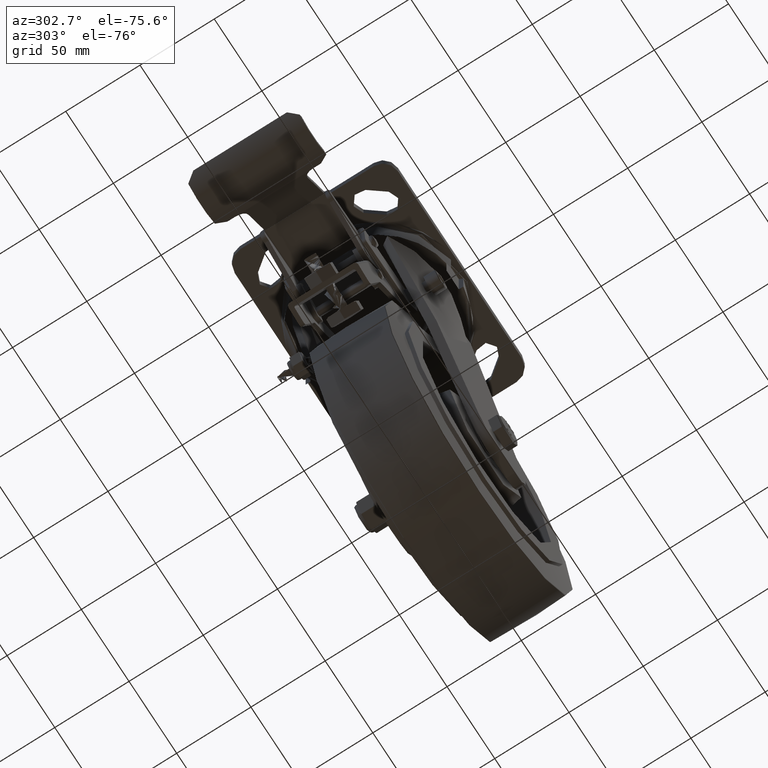
[diagram: clean part render]
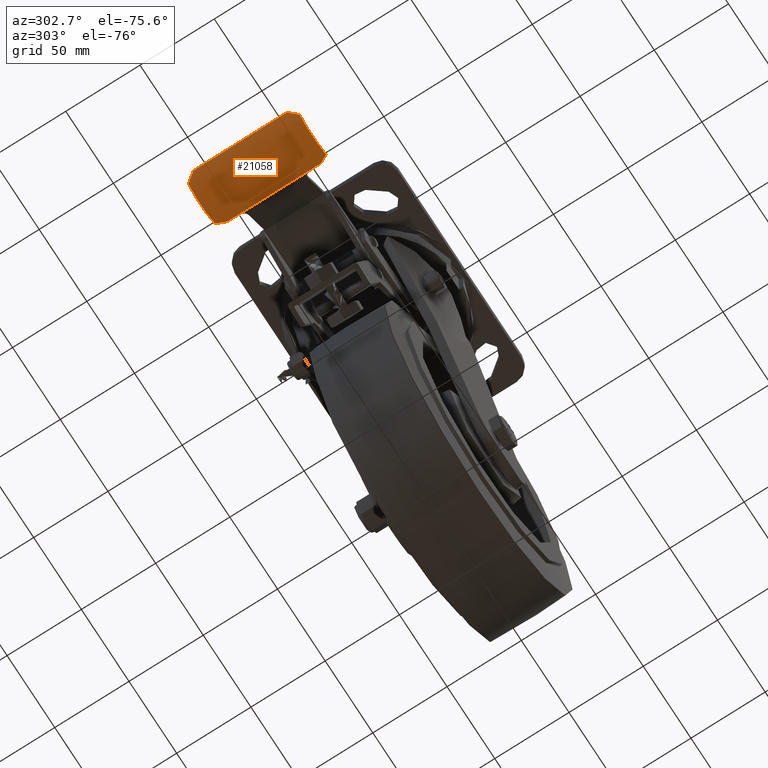
[diagram: same view with one face highlighted and labeled with its STEP entity id]
A machine part, auxiliary view. The second image highlights one B-rep face of the part: STEP entity #21058.
In plain terms, the highlighted cylindrical surface (partial cylindrical patch) has radius 21.1794 mm, axis along (0, -1, 0).
Its self-contained STEP definition (entity closure, byte-faithful):
#1582=B_SPLINE_CURVE_WITH_KNOTS('',3,(#33618,#33619,#33620,#33621,#33622,
#33623,#33624,#33625,#33626,#33627),.UNSPECIFIED.,.F.,.F.,(4,2,2,2,4),(-0.90618145548267,
-0.680148715208419,-0.454115974934168,-0.227057987467084,0.),
 .UNSPECIFIED.);
#1585=B_SPLINE_CURVE_WITH_KNOTS('',3,(#33658,#33659,#33660,#33661,#33662,
#33663,#33664,#33665,#33666,#33667),.UNSPECIFIED.,.F.,.F.,(4,2,2,2,4),(2.81466661257256,
3.04464387627709,3.27462113998161,3.50075496655891,3.72688879313621),
 .UNSPECIFIED.);
#1586=B_SPLINE_CURVE_WITH_KNOTS('',3,(#33696,#33697,#33698,#33699,#33700,
#33701,#33702,#33703,#33704,#33705),.UNSPECIFIED.,.F.,.F.,(4,2,2,2,4),(-1.82301550806015,
-1.59595752059306,-1.36889953312598,-1.14286679285173,-0.916834052577477),
 .UNSPECIFIED.);
#1589=B_SPLINE_CURVE_WITH_KNOTS('',3,(#33736,#33737,#33738,#33739,#33740,
#33741,#33742,#33743,#33744,#33745),.UNSPECIFIED.,.F.,.F.,(4,2,2,2,4),(1.86339257006598,
2.08952639664327,2.31566022322057,2.5456374869251,2.77561475062962),
 .UNSPECIFIED.);
#2573=FACE_OUTER_BOUND('',#3856,.T.);
#3856=EDGE_LOOP('',(#15239,#15240,#15241,#15242,#15243,#15244,#15245,#15246,
#15247,#15248));
#5355=LINE('',#33903,#6788);
#5369=LINE('',#33939,#6802);
#5370=LINE('',#33941,#6803);
#5372=LINE('',#33944,#6805);
#6788=VECTOR('',#25693,1000.);
#6802=VECTOR('',#25739,1000.);
#6803=VECTOR('',#25742,1000.);
#6805=VECTOR('',#25746,1000.);
#8041=CIRCLE('',#22889,21.1794125181818);
#8045=CIRCLE('',#22904,21.1794125181818);
#9137=VERTEX_POINT('',#33608);
#9140=VERTEX_POINT('',#33616);
#9141=VERTEX_POINT('',#33617);
#9146=VERTEX_POINT('',#33655);
#9147=VERTEX_POINT('',#33657);
#9155=VERTEX_POINT('',#33686);
#9158=VERTEX_POINT('',#33694);
#9159=VERTEX_POINT('',#33695);
#9164=VERTEX_POINT('',#33733);
#9165=VERTEX_POINT('',#33735);
#11382=EDGE_CURVE('',#9140,#9141,#1582,.F.);
#11388=EDGE_CURVE('',#9146,#9147,#1585,.T.);
#11401=EDGE_CURVE('',#9158,#9159,#1586,.T.);
#11407=EDGE_CURVE('',#9165,#9164,#1589,.F.);
#11488=EDGE_CURVE('',#9165,#9159,#8041,.T.);
#11489=EDGE_CURVE('',#9155,#9164,#5355,.T.);
#11505=EDGE_CURVE('',#9146,#9141,#8045,.T.);
#11508=EDGE_CURVE('',#9137,#9147,#5369,.T.);
#11509=EDGE_CURVE('',#9137,#9155,#5370,.T.);
#11511=EDGE_CURVE('',#9140,#9158,#5372,.T.);
#15239=ORIENTED_EDGE('',*,*,#11511,.T.);
#15240=ORIENTED_EDGE('',*,*,#11401,.T.);
#15241=ORIENTED_EDGE('',*,*,#11488,.F.);
#15242=ORIENTED_EDGE('',*,*,#11407,.T.);
#15243=ORIENTED_EDGE('',*,*,#11489,.F.);
#15244=ORIENTED_EDGE('',*,*,#11509,.F.);
#15245=ORIENTED_EDGE('',*,*,#11508,.T.);
#15246=ORIENTED_EDGE('',*,*,#11388,.F.);
#15247=ORIENTED_EDGE('',*,*,#11505,.T.);
#15248=ORIENTED_EDGE('',*,*,#11382,.F.);
#20561=CYLINDRICAL_SURFACE('',#22908,21.1794125181818);
#21058=ADVANCED_FACE('',(#2573),#20561,.T.);
#22889=AXIS2_PLACEMENT_3D('',#33901,#25689,#25690);
#22904=AXIS2_PLACEMENT_3D('',#33935,#25732,#25733);
#22908=AXIS2_PLACEMENT_3D('',#33943,#25744,#25745);
#25689=DIRECTION('center_axis',(0.,1.,0.));
#25690=DIRECTION('ref_axis',(-0.866025403784439,0.,-0.5));
#25693=DIRECTION('',(0.,1.,0.));
#25732=DIRECTION('center_axis',(0.,1.,0.));
#25733=DIRECTION('ref_axis',(-0.866025403784439,0.,-0.5));
#25739=DIRECTION('',(0.,-1.,0.));
#25742=DIRECTION('',(0.,1.,0.));
#25744=DIRECTION('center_axis',(0.,-1.,0.));
#25745=DIRECTION('ref_axis',(-0.866025403784439,0.,-0.5));
#25746=DIRECTION('',(0.,1.,0.));
#33608=CARTESIAN_POINT('',(-109.222933559423,-26.,-84.7677375304762));
#33616=CARTESIAN_POINT('',(-145.,-31.5,-85.7033539364386));
#33617=CARTESIAN_POINT('',(-140.980415655893,-37.5,-90.16905096657));
#33618=CARTESIAN_POINT('Ctrl Pts',(-140.980415655893,-37.5,-90.1690509665698));
#33619=CARTESIAN_POINT('Ctrl Pts',(-141.558809327265,-37.5,-89.6862090536513));
#33620=CARTESIAN_POINT('Ctrl Pts',(-142.145847539986,-37.3503647475899,
-89.138484670901));
#33621=CARTESIAN_POINT('Ctrl Pts',(-143.170522809539,-36.7403958707113,
-88.0751827031896));
#33622=CARTESIAN_POINT('Ctrl Pts',(-143.609767673399,-36.2801270776072,
-87.5611184746477));
#33623=CARTESIAN_POINT('Ctrl Pts',(-144.280197279182,-35.2172943417119,
-86.7233093456753));
#33624=CARTESIAN_POINT('Ctrl Pts',(-144.555979608178,-34.5427636577845,
-86.3440917593925));
#33625=CARTESIAN_POINT('Ctrl Pts',(-144.915042357905,-33.0626572351776,
-85.8332022383777));
#33626=CARTESIAN_POINT('Ctrl Pts',(-145.,-32.2568599582236,-85.7033539364382));
#33627=CARTESIAN_POINT('Ctrl Pts',(-145.,-31.5,-85.7033539364382));
#33655=CARTESIAN_POINT('',(-113.04375256585,-37.5,-89.4745587950031));
#33657=CARTESIAN_POINT('',(-109.222933559423,-31.5,-84.7677375304762));
#33658=CARTESIAN_POINT('Ctrl Pts',(-113.04375256585,-37.5,-89.4745587950033));
#33659=CARTESIAN_POINT('Ctrl Pts',(-112.480402490922,-37.5,-88.9546566226015));
#33660=CARTESIAN_POINT('Ctrl Pts',(-111.90998471252,-37.3558959334747,-88.3656743183349));
#33661=CARTESIAN_POINT('Ctrl Pts',(-110.921935112173,-36.7480107567127,
-87.2278343316612));
#33662=CARTESIAN_POINT('Ctrl Pts',(-110.502623445708,-36.2837652625854,
-86.6806847546128));
#33663=CARTESIAN_POINT('Ctrl Pts',(-109.875731352113,-35.2105595199028,
-85.8050355161393));
#33664=CARTESIAN_POINT('Ctrl Pts',(-109.624186140824,-34.5361267090206,
-85.41726005044));
#33665=CARTESIAN_POINT('Ctrl Pts',(-109.29877120043,-33.057723241175,-84.8980313367875));
#33666=CARTESIAN_POINT('Ctrl Pts',(-109.222933559422,-32.2537794219243,
-84.7677375304765));
#33667=CARTESIAN_POINT('Ctrl Pts',(-109.222933559422,-31.5,-84.7677375304765));
#33686=CARTESIAN_POINT('',(-109.222933559423,26.,-84.7677375304762));
#33694=CARTESIAN_POINT('',(-145.,31.5,-85.7033539364386));
#33695=CARTESIAN_POINT('',(-140.980415655893,37.5,-90.16905096657));
#33696=CARTESIAN_POINT('Ctrl Pts',(-145.,31.5,-85.7033539364382));
#33697=CARTESIAN_POINT('Ctrl Pts',(-145.,32.2568599582236,-85.7033539364382));
#33698=CARTESIAN_POINT('Ctrl Pts',(-144.915042357905,33.0626572351776,-85.8332022383777));
#33699=CARTESIAN_POINT('Ctrl Pts',(-144.555979608178,34.5427636577845,-86.3440917593925));
#33700=CARTESIAN_POINT('Ctrl Pts',(-144.280197279182,35.2172943417119,-86.7233093456753));
#33701=CARTESIAN_POINT('Ctrl Pts',(-143.609767673399,36.2801270776072,-87.5611184746477));
#33702=CARTESIAN_POINT('Ctrl Pts',(-143.170522809539,36.7403958707113,-88.0751827031896));
#33703=CARTESIAN_POINT('Ctrl Pts',(-142.145847539986,37.3503647475899,-89.138484670901));
#33704=CARTESIAN_POINT('Ctrl Pts',(-141.558809327265,37.5,-89.6862090536513));
#33705=CARTESIAN_POINT('Ctrl Pts',(-140.980415655893,37.5,-90.1690509665698));
#33733=CARTESIAN_POINT('',(-109.222933559423,31.5,-84.7677375304762));
#33735=CARTESIAN_POINT('',(-113.04375256585,37.5,-89.4745587950031));
#33736=CARTESIAN_POINT('Ctrl Pts',(-109.222933559422,31.5,-84.7677375304765));
#33737=CARTESIAN_POINT('Ctrl Pts',(-109.222933559422,32.2537794219243,-84.7677375304765));
#33738=CARTESIAN_POINT('Ctrl Pts',(-109.29877120043,33.057723241175,-84.8980313367875));
#33739=CARTESIAN_POINT('Ctrl Pts',(-109.624186140824,34.5361267090206,-85.41726005044));
#33740=CARTESIAN_POINT('Ctrl Pts',(-109.875731352113,35.2105595199027,-85.8050355161393));
#33741=CARTESIAN_POINT('Ctrl Pts',(-110.502623445708,36.2837652625854,-86.6806847546128));
#33742=CARTESIAN_POINT('Ctrl Pts',(-110.921935112173,36.7480107567127,-87.2278343316612));
#33743=CARTESIAN_POINT('Ctrl Pts',(-111.90998471252,37.3558959334747,-88.3656743183348));
#33744=CARTESIAN_POINT('Ctrl Pts',(-112.480402490922,37.5,-88.9546566226015));
#33745=CARTESIAN_POINT('Ctrl Pts',(-113.04375256585,37.5,-89.4745587950033));
#33901=CARTESIAN_POINT('Origin',(-127.407636718168,37.5,-73.9102937409091));
#33903=CARTESIAN_POINT('',(-109.222933559423,0.,-84.7677375304762));
#33935=CARTESIAN_POINT('Origin',(-127.407636718168,-37.5,-73.9102937409091));
#33939=CARTESIAN_POINT('',(-109.222933559423,0.,-84.7677375304762));
#33941=CARTESIAN_POINT('',(-109.222933559423,0.,-84.7677375304762));
#33943=CARTESIAN_POINT('Origin',(-127.407636718168,0.,-73.9102937409091));
#33944=CARTESIAN_POINT('',(-145.,0.,-85.7033539364386));